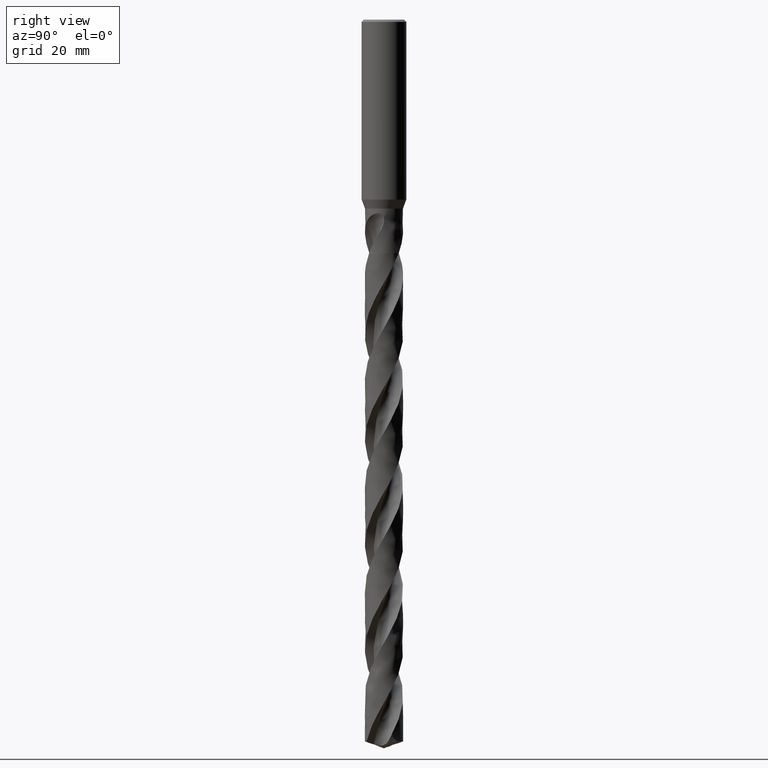
[diagram: clean part render]
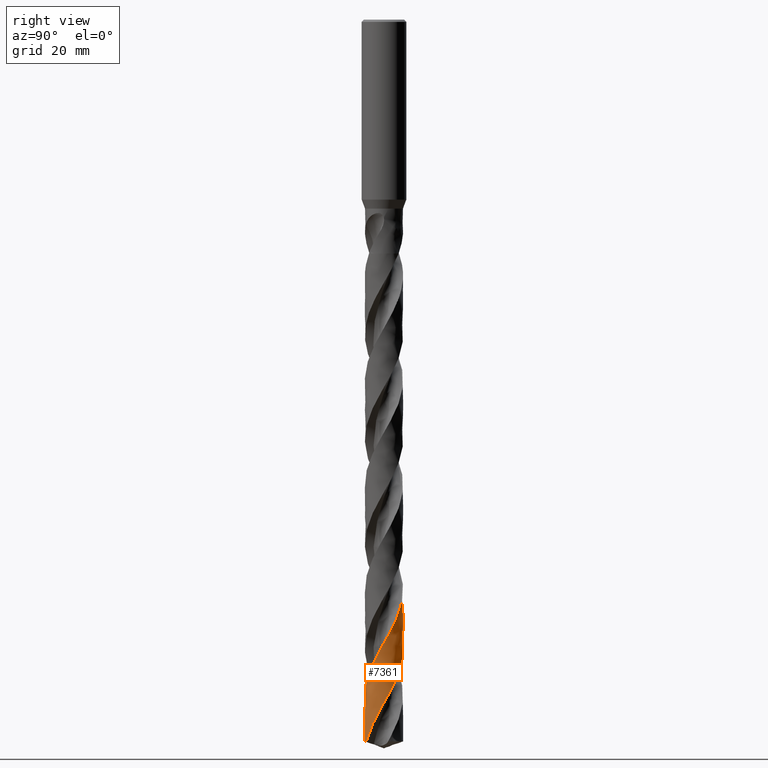
[diagram: same view with one face highlighted and labeled with its STEP entity id]
A machine part, right view. The second image highlights one B-rep face of the part: STEP entity #7361.
In plain terms, the highlighted face is a freeform B-spline surface patch.
Its self-contained STEP definition (entity closure, byte-faithful):
#4121 = VERTEX_POINT('', #4122);
#4122 = CARTESIAN_POINT('', (-4.25, 8.12227480106828E-15, -128.396813868673));
#4384 = EDGE_CURVE('', #4385, #4121, #4387, .T.);
#4385 = VERTEX_POINT('', #4386);
#4386 = CARTESIAN_POINT('', (1.7213034582218, -3.88582223019963, -160.453126504369));
#4387 = B_SPLINE_CURVE_WITH_KNOTS('', 3, (#4388, #4389, #4390, #4391, #4392, #4393, #4394, #4395, #4396, #4397, #4398, #4399, #4400, #4401, #4402, #4403, #4404, #4405, #4406, #4407, #4408, #4409, #4410, #4411, #4412, #4413, #4414, #4415, #4416, #4417, #4418, #4419, #4420, #4421, #4422, #4423, #4424, #4425, #4426, #4427, #4428, #4429, #4430, #4431, #4432, #4433, #4434, #4435, #4436, #4437, #4438, #4439, #4440, #4441, #4442, #4443, #4444, #4445, #4446, #4447, #4448, #4449, #4450, #4451, #4452, #4453, #4454, #4455, #4456, #4457, #4458, #4459, #4460, #4461, #4462, #4463, #4464, #4465, #4466, #4467, #4468, #4469, #4470, #4471, #4472, #4473, #4474, #4475, #4476, #4477, #4478, #4479, #4480, #4481, #4482, #4483, #4484, #4485, #4486, #4487, #4488, #4489, #4490, #4491, #4492, #4493, #4494, #4495, #4496, #4497, #4498, #4499, #4500, #4501, #4502, #4503, #4504, #4505, #4506, #4507, #4508, #4509, #4510, #4511, #4512, #4513, #4514, #4515, #4516, #4517, #4518, #4519, #4520, #4521, #4522, #4523, #4524, #4525, #4526, #4527, #4528, #4529, #4530, #4531, #4532, #4533, #4534, #4535, #4536, #4537, #4538, #4539, #4540, #4541, #4542, #4543, #4544, #4545, #4546, #4547, #4548, #4549, #4550, #4551, #4552, #4553, #4554, #4555, #4556, #4557, #4558, #4559, #4560, #4561, #4562, #4563, #4564, #4565, #4566, #4567, #4568), .UNSPECIFIED., .F., .U., (4, 3, 3, 3, 3, 3, 3, 3, 3, 3, 3, 3, 3, 3, 3, 3, 3, 3, 3, 3, 3, 3, 3, 3, 3, 3, 3, 3, 3, 3, 3, 3, 3, 3, 3, 3, 3, 3, 3, 3, 3, 3, 3, 3, 3, 3, 3, 3, 3, 3, 3, 3, 3, 3, 3, 3, 3, 3, 3, 3, 4), (0., 0.6655591401762, 1.33099209956627, 1.99630093449878, 2.66148715579485, 3.32655135398246, 3.99149413886519, 4.65631612548015, 5.32101721848678, 5.98559652809935, 6.65005334583186, 7.31438677449947, 7.97859512865723, 8.64267596814946, 9.30662709228754, 9.74945519051851, 9.88077345148786, 9.9683445954408, 10.634624893333, 11.3007608774789, 11.9667573612843, 12.6326184139383, 13.2983471387296, 13.9639461298357, 14.6294180893186, 15.2947650606578, 15.9599882497665, 16.6250886636775, 17.2900673795947, 17.9549248191992, 18.6196606220089, 19.28427446949, 19.9487659369517, 20.6131338946798, 21.2773764631943, 21.9414919091297, 22.6054781556391, 23.2693322964471, 23.4006501711016, 23.4590406646137, 24.1253242638683, 24.791463045132, 25.4574618222669, 26.1233246390809, 26.7890546055256, 27.4546544146072, 28.1201267357756, 28.785473579311, 29.4506961591252, 30.1157955742963, 30.7807728436041, 31.4456283514775, 32.1103617649899, 32.7749728152923, 33.4394610131399, 34.10382518939, 34.7680635084249, 35.4321742423179, 36.0961552437351, 36.7600035642459, 36.8877389686941), .UNSPECIFIED.);
#4388 = CARTESIAN_POINT('', (1.72130345822179, -3.88582223019963, -160.453126504369));
#4389 = CARTESIAN_POINT('', (1.82155421017638, -3.84141413435632, -160.260262609102));
#4390 = CARTESIAN_POINT('', (1.9201053764042, -3.79311465321824, -160.067364646324));
#4391 = CARTESIAN_POINT('', (2.01662660010283, -3.74108502386107, -159.874503698006));
#4392 = CARTESIAN_POINT('', (2.11312952471555, -3.68906525860033, -159.68167931345));
#4393 = CARTESIAN_POINT('', (2.20763740558999, -3.63329837100673, -159.488820739171));
#4394 = CARTESIAN_POINT('', (2.2998337433727, -3.5739704465544, -159.295999198892));
#4395 = CARTESIAN_POINT('', (2.39201288359965, -3.51465358865105, -159.103213625977));
#4396 = CARTESIAN_POINT('', (2.48191456004519, -3.45175558948141, -158.910394352668));
#4397 = CARTESIAN_POINT('', (2.56923619718098, -3.38548746314249, -158.717611501335));
#4398 = CARTESIAN_POINT('', (2.65654174130415, -3.31923154974217, -158.524864179075));
#4399 = CARTESIAN_POINT('', (2.74130092017879, -3.24958190022469, -158.332083465057));
#4400 = CARTESIAN_POINT('', (2.82322803190043, -3.17677249419778, -158.139339144537));
#4401 = CARTESIAN_POINT('', (2.90514011474667, -3.10397644447585, -157.946630181426));
#4402 = CARTESIAN_POINT('', (2.98425116348828, -3.02799521447711, -157.753887257152));
#4403 = CARTESIAN_POINT('', (3.06029604252879, -2.94908259160075, -157.561181333639));
#4404 = CARTESIAN_POINT('', (3.13632703890938, -2.8701843749161, -157.368510590283));
#4405 = CARTESIAN_POINT('', (3.2093198221316, -2.78832799095446, -157.175805726975));
#4406 = CARTESIAN_POINT('', (3.27902988087059, -2.7037867963946, -156.983137747059));
#4407 = CARTESIAN_POINT('', (3.34872727558113, -2.61926096019351, -156.790504768588));
#4408 = CARTESIAN_POINT('', (3.41516844134594, -2.53202052086039, -156.597838248083));
#4409 = CARTESIAN_POINT('', (3.47812958660994, -2.44235840505617, -156.405208013213));
#4410 = CARTESIAN_POINT('', (3.54107928279405, -2.35271259373184, -156.212612806913));
#4411 = CARTESIAN_POINT('', (3.60057382300166, -2.26061238575419, -156.019984190591));
#4412 = CARTESIAN_POINT('', (3.65641281352364, -2.16636685192054, -155.827392041953));
#4413 = CARTESIAN_POINT('', (3.71224157348957, -2.07213858530836, -155.634835179138));
#4414 = CARTESIAN_POINT('', (3.7644363473767, -1.97573174955759, -155.442244283462));
#4415 = CARTESIAN_POINT('', (3.81282229131544, -1.8774680223237, -155.249690388606));
#4416 = CARTESIAN_POINT('', (3.86119931700296, -1.77922240656049, -155.057171984305));
#4417 = CARTESIAN_POINT('', (3.90578598776708, -1.67908588445831, -154.864619594014));
#4418 = CARTESIAN_POINT('', (3.94643271513653, -1.57739304705583, -154.672103921923));
#4419 = CARTESIAN_POINT('', (3.98707189444335, -1.47571909392661, -154.479623999827));
#4420 = CARTESIAN_POINT('', (4.02378744311406, -1.37245211767566, -154.287110675783));
#4421 = CARTESIAN_POINT('', (4.05645545256836, -1.26793894227144, -154.094633525517));
#4422 = CARTESIAN_POINT('', (4.08911731159414, -1.16344544363438, -153.902192613055));
#4423 = CARTESIAN_POINT('', (4.11774539261538, -1.05766713094008, -153.709718256293));
#4424 = CARTESIAN_POINT('', (4.14224311252591, -0.950958462148456, -153.517280435672));
#4425 = CARTESIAN_POINT('', (4.16673612936618, -0.844270279278344, -153.324879559248));
#4426 = CARTESIAN_POINT('', (4.18710918470524, -0.736613920039199, -153.13244462792));
#4427 = CARTESIAN_POINT('', (4.20329376243792, -0.628348268598457, -152.940046650674));
#4428 = CARTESIAN_POINT('', (4.21947517882622, -0.520103764759759, -152.747686254653));
#4429 = CARTESIAN_POINT('', (4.23147546025478, -0.411211847130101, -152.55529203066));
#4430 = CARTESIAN_POINT('', (4.2392539358829, -0.302036532726988, -152.362934346003));
#4431 = CARTESIAN_POINT('', (4.24444185927713, -0.229221087292419, -152.234639680055));
#4432 = CARTESIAN_POINT('', (4.24775360871834, -0.156264642808209, -152.106335390021));
#4433 = CARTESIAN_POINT('', (4.24918404809079, -0.083276199785954, -151.978042108895));
#4434 = CARTESIAN_POINT('', (4.24960823709678, -0.0616318744894494, -151.939997435039));
#4435 = CARTESIAN_POINT('', (4.24986704940231, -0.039984067833722, -151.901952538311));
#4436 = CARTESIAN_POINT('', (4.24996044739381, -0.0183356371082067, -151.863907950173));
#4437 = CARTESIAN_POINT('', (4.25002273095513, -0.00389912363761182, -151.83853746415));
#4438 = CARTESIAN_POINT('', (4.25001145573993, 0.0105377829039946, -151.813166914573));
#4439 = CARTESIAN_POINT('', (4.2499266213453, 0.0249742503495454, -151.787796467744));
#4440 = CARTESIAN_POINT('', (4.24928116345615, 0.134813329707728, -151.594766799435));
#4441 = CARTESIAN_POINT('', (4.24437421685205, 0.244650262870293, -151.401703230016));
#4442 = CARTESIAN_POINT('', (4.23522168727937, 0.35411475484462, -151.208676679985));
#4443 = CARTESIAN_POINT('', (4.22607114010934, 0.463555537231585, -151.015691938761));
#4444 = CARTESIAN_POINT('', (4.21267360980863, 0.57266323349908, -150.822672772029));
#4445 = CARTESIAN_POINT('', (4.19507348906931, 0.68107152437017, -150.629690892236));
#4446 = CARTESIAN_POINT('', (4.1774770540982, 0.789457112679249, -150.43674942617));
#4447 = CARTESIAN_POINT('', (4.15567343374662, 0.897182497457559, -150.243773899551));
#4448 = CARTESIAN_POINT('', (4.12973553976558, 1.00388464058236, -150.050835158202));
#4449 = CARTESIAN_POINT('', (4.10380292028512, 1.11056508570356, -149.85793565117));
#4450 = CARTESIAN_POINT('', (4.07372797962674, 1.21626258649875, -149.665002548287));
#4451 = CARTESIAN_POINT('', (4.03961179786497, 1.32061974941698, -149.47210592668));
#4452 = CARTESIAN_POINT('', (4.00550239607839, 1.42495617323315, -149.279247639793));
#4453 = CARTESIAN_POINT('', (3.96734069121566, 1.52799167995798, -149.086355406022));
#4454 = CARTESIAN_POINT('', (3.92525445751574, 1.62937946585589, -148.893500213586));
#4455 = CARTESIAN_POINT('', (3.88317642535797, 1.73074749383948, -148.700682603748));
#4456 = CARTESIAN_POINT('', (3.83716041436932, 1.83050459667575, -148.50783064004));
#4457 = CARTESIAN_POINT('', (3.7873602289036, 1.92831597424264, -148.315015846787));
#4458 = CARTESIAN_POINT('', (3.73756954795708, 2.02610868420603, -148.122237852833));
#4459 = CARTESIAN_POINT('', (3.68397811557934, 2.1219917107232, -147.929425954982));
#4460 = CARTESIAN_POINT('', (3.62676595319534, 2.21564183042819, -147.736650685462));
#4461 = CARTESIAN_POINT('', (3.56956453633093, 2.30927436088023, -147.54391162276));
#4462 = CARTESIAN_POINT('', (3.50872228659088, 2.4007099164338, -147.351139005622));
#4463 = CARTESIAN_POINT('', (3.44444401696695, 2.48963961528182, -147.158402885867));
#4464 = CARTESIAN_POINT('', (3.38017770577665, 2.57855276950431, -146.965702623053));
#4465 = CARTESIAN_POINT('', (3.31245297516873, 2.66499384031618, -146.772968340255));
#4466 = CARTESIAN_POINT('', (3.24149666400404, 2.74867229353569, -146.580271123334));
#4467 = CARTESIAN_POINT('', (3.17055344870741, 2.83233530285789, -146.387609471077));
#4468 = CARTESIAN_POINT('', (3.09635462746732, 2.91326647085894, -146.194913558503));
#4469 = CARTESIAN_POINT('', (3.01914849105249, 2.99119414097038, -146.002254684047));
#4470 = CARTESIAN_POINT('', (2.94195648157506, 3.06910755212045, -145.809631061708));
#4471 = CARTESIAN_POINT('', (2.86173015238182, 3.14404686577761, -145.616973686683));
#4472 = CARTESIAN_POINT('', (2.77873928671423, 3.21575931569372, -145.424352798435));
#4473 = CARTESIAN_POINT('', (2.69576355660803, 3.28745868696341, -145.231767039658));
#4474 = CARTESIAN_POINT('', (2.60999316451736, 3.35595926831388, -145.039147727018));
#4475 = CARTESIAN_POINT('', (2.52171662193598, 3.4210298564397, -144.846564974152));
#4476 = CARTESIAN_POINT('', (2.4334562296976, 3.4860885397912, -144.654017454626));
#4477 = CARTESIAN_POINT('', (2.34265843892421, 3.54774225590119, -144.461435834837));
#4478 = CARTESIAN_POINT('', (2.24962707205959, 3.60578396977089, -144.268891292916));
#4479 = CARTESIAN_POINT('', (2.15661277313514, 3.66381503505469, -144.076382076057));
#4480 = CARTESIAN_POINT('', (2.06133266778219, 3.71825603669119, -143.883838716258));
#4481 = CARTESIAN_POINT('', (1.96410575368641, 3.7689240624263, -143.691332245557));
#4482 = CARTESIAN_POINT('', (1.86689674266573, 3.81958275830169, -143.498861222426));
#4483 = CARTESIAN_POINT('', (1.76770600739674, 3.86648838446756, -143.306356588326));
#4484 = CARTESIAN_POINT('', (1.66686722834232, 3.909482528811, -143.11388832022));
#4485 = CARTESIAN_POINT('', (1.5660471922987, 3.95246868178724, -142.921455826396));
#4486 = CARTESIAN_POINT('', (1.46354193915994, 3.99156092956992, -142.728989760225));
#4487 = CARTESIAN_POINT('', (1.35969583498046, 4.02662727805007, -142.536560314593));
#4488 = CARTESIAN_POINT('', (1.2558693301528, 4.06168700829734, -142.344167187054));
#4489 = CARTESIAN_POINT('', (1.15066499295869, 4.0927350662556, -142.15173992323));
#4490 = CARTESIAN_POINT('', (1.04443450275607, 4.11966704594593, -141.95934970847));
#4491 = CARTESIAN_POINT('', (0.93822434291851, 4.14659387140061, -141.766996313302));
#4492 = CARTESIAN_POINT('', (0.830950610638007, 4.16941576028675, -141.574608916313));
#4493 = CARTESIAN_POINT('', (0.72297259556332, 4.18805570952258, -141.382258243927));
#4494 = CARTESIAN_POINT('', (0.615015586923059, 4.20669203247512, -141.189944992138));
#4495 = CARTESIAN_POINT('', (0.506314735987329, 4.22115487621615, -140.997598255418));
#4496 = CARTESIAN_POINT('', (0.397235680532045, 4.23139501986197, -140.805287792414));
#4497 = CARTESIAN_POINT('', (0.288178327280989, 4.24163312614426, -140.61301559121));
#4498 = CARTESIAN_POINT('', (0.178702176475107, 4.24765406261815, -140.420709782489));
#4499 = CARTESIAN_POINT('', (0.0691744418434332, 4.24943700936917, -140.228440645804));
#4500 = CARTESIAN_POINT('', (0.0475086143017847, 4.24978969644841, -140.190407630961));
#4501 = CARTESIAN_POINT('', (0.0258398483397899, 4.24997668715569, -140.152374392453));
#4502 = CARTESIAN_POINT('', (0.00417100719078126, 4.24999795325822, -140.114341465136));
#4503 = CARTESIAN_POINT('', (-0.00546404311637758, 4.2500074092308, -140.097430123846));
#4504 = CARTESIAN_POINT('', (-0.0150991530846251, 4.24998410002246, -140.080518766486));
#4505 = CARTESIAN_POINT('', (-0.0247340751506823, 4.24992802592309, -140.063607442453));
#4506 = CARTESIAN_POINT('', (-0.134676467594798, 4.24928817428787, -139.870635313482));
#4507 = CARTESIAN_POINT('', (-0.244616864553485, 4.24437881410401, -139.677629084216));
#4508 = CARTESIAN_POINT('', (-0.354184053559415, 4.23521589251415, -139.484660035953));
#4509 = CARTESIAN_POINT('', (-0.463727427931143, 4.2260549625025, -139.291732929875));
#4510 = CARTESIAN_POINT('', (-0.572937131088277, 4.2126390552778, -139.098771310572));
#4511 = CARTESIAN_POINT('', (-0.681445561563599, 4.19501274689665, -138.905847036476));
#4512 = CARTESIAN_POINT('', (-0.789931186538478, 4.17739014308281, -138.712963309778));
#4513 = CARTESIAN_POINT('', (-0.897755137164982, 4.15555248483413, -138.520045456393));
#4514 = CARTESIAN_POINT('', (-1.00455310633781, 4.12957298719216, -138.327164460701));
#4515 = CARTESIAN_POINT('', (-1.11132927323915, 4.10359879313474, -138.1343228407));
#4516 = CARTESIAN_POINT('', (-1.21711995429611, 4.07347467751293, -137.941447460501));
#4517 = CARTESIAN_POINT('', (-1.32156688924127, 4.03930203838005, -137.748608752004));
#4518 = CARTESIAN_POINT('', (-1.42599298533864, 4.00513621723973, -137.55580851794));
#4519 = CARTESIAN_POINT('', (-1.52911469078083, 3.96691083203204, -137.36297413738));
#4520 = CARTESIAN_POINT('', (-1.63058436818511, 3.92475408379053, -137.170176947875));
#4521 = CARTESIAN_POINT('', (-1.73203420717697, 3.88260557764636, -136.977417452292));
#4522 = CARTESIAN_POINT('', (-1.83186901940376, 3.8365121581498, -136.784623530913));
#4523 = CARTESIAN_POINT('', (-1.92975285412883, 3.78662830523167, -136.591866830234));
#4524 = CARTESIAN_POINT('', (-2.02761794034219, 3.73675400698623, -136.399147049863));
#4525 = CARTESIAN_POINT('', (-2.12356844195113, 3.68307251457534, -136.206393290678));
#4526 = CARTESIAN_POINT('', (-2.21728011442904, 3.6257645944211, -136.013676246283));
#4527 = CARTESIAN_POINT('', (-2.31097411717302, 3.56846747991864, -135.820995539506));
#4528 = CARTESIAN_POINT('', (-2.40246533976002, 3.50752376486017, -135.628281092816));
#4529 = CARTESIAN_POINT('', (-2.49144430060811, 3.44313887273915, -135.435603355551));
#4530 = CARTESIAN_POINT('', (-2.58040664327142, 3.3787660054836, -135.242961603806));
#4531 = CARTESIAN_POINT('', (-2.66689040744314, 3.31092960810744, -135.050285637335));
#4532 = CARTESIAN_POINT('', (-2.75060444180938, 3.23985728153241, -134.857646872255));
#4533 = CARTESIAN_POINT('', (-2.83430297668794, 3.16879811385789, -134.665043773861));
#4534 = CARTESIAN_POINT('', (-2.91526274789117, 3.0944787970556, -134.472406354505));
#4535 = CARTESIAN_POINT('', (-2.99321126692706, 3.01714870557302, -134.279806019891));
#4536 = CARTESIAN_POINT('', (-3.07114547067576, 2.93983281580308, -134.08724105643));
#4537 = CARTESIAN_POINT('', (-3.14609808043157, 2.85947887115798, -133.894642252519));
#4538 = CARTESIAN_POINT('', (-3.21781570450668, 2.77635770242781, -133.702080039758));
#4539 = CARTESIAN_POINT('', (-3.28952019664302, 2.69325175369569, -133.509553086325));
#4540 = CARTESIAN_POINT('', (-3.35801782957931, 2.60734837526573, -133.316992389385));
#4541 = CARTESIAN_POINT('', (-3.42307709540408, 2.51893691840825, -133.124468450789));
#4542 = CARTESIAN_POINT('', (-3.48812441371636, 2.43054169746999, -132.931979867376));
#4543 = CARTESIAN_POINT('', (-3.54975836080501, 2.33960714129897, -132.739457027491));
#4544 = CARTESIAN_POINT('', (-3.6077715693387, 2.24643813702301, -132.546971371592));
#4545 = CARTESIAN_POINT('', (-3.66577409888097, 2.15328628316888, -132.354521148187));
#4546 = CARTESIAN_POINT('', (-3.72017797484701, 2.05786745230081, -132.162036727533));
#4547 = CARTESIAN_POINT('', (-3.77079991317431, 1.96050198031133, -131.969589243729));
#4548 = CARTESIAN_POINT('', (-3.82141249410471, 1.8631545061978, -131.777177333583));
#4549 = CARTESIAN_POINT('', (-3.86826318064425, 1.76382516077444, -131.584731707652));
#4550 = CARTESIAN_POINT('', (-3.91119341203211, 1.66284878857841, -131.392322573976));
#4551 = CARTESIAN_POINT('', (-3.95411563082335, 1.56189126284352, -131.19994935198));
#4552 = CARTESIAN_POINT('', (-3.99313496647505, 1.45924948091366, -131.007542365459));
#4553 = CARTESIAN_POINT('', (-4.02811948701124, 1.35526875502993, -130.815172182278));
#4554 = CARTESIAN_POINT('', (-4.0630973800764, 1.25130772726517, -130.622838441724));
#4555 = CARTESIAN_POINT('', (-4.09405466934083, 1.14597068804832, -130.430470443837));
#4556 = CARTESIAN_POINT('', (-4.1208870276377, 1.0396105547018, -130.238139576227));
#4557 = CARTESIAN_POINT('', (-4.14771423204607, 0.933270850728772, -130.045845651023));
#4558 = CARTESIAN_POINT('', (-4.17042769885197, 0.825870260741553, -129.853517670763));
#4559 = CARTESIAN_POINT('', (-4.18895058369406, 0.717769466729679, -129.66122646899));
#4560 = CARTESIAN_POINT('', (-4.20746985013399, 0.60968978995462, -129.468972830853));
#4561 = CARTESIAN_POINT('', (-4.22180701218255, 0.500870056955275, -129.276685581592));
#4562 = CARTESIAN_POINT('', (-4.23191317743147, 0.391676982579049, -129.084434758264));
#4563 = CARTESIAN_POINT('', (-4.24201732320218, 0.282505727857388, -128.892222351718));
#4564 = CARTESIAN_POINT('', (-4.24789596298074, 0.172920536770311, -128.699976143337));
#4565 = CARTESIAN_POINT('', (-4.24952873102842, 0.0632895265003367, -128.507766774406));
#4566 = CARTESIAN_POINT('', (-4.2498429026253, 0.0421947055838319, -128.4707825105));
#4567 = CARTESIAN_POINT('', (-4.25, 0.0210973165448431, -128.433798043459));
#4568 = CARTESIAN_POINT('', (-4.25, 8.20250576183221E-15, -128.396813868673));
#5113 = VERTEX_POINT('', #5114);
#5114 = CARTESIAN_POINT('', (-4.1509815515428, -0.912059295633432, -160.453126504369));
#5163 = EDGE_CURVE('', #5164, #5113, #5166, .T.);
#5164 = VERTEX_POINT('', #5165);
#5165 = CARTESIAN_POINT('', (-3.95821202947027, -1.54759734096333, -159.278966321454));
#5166 = B_SPLINE_CURVE_WITH_KNOTS('', 3, (#5167, #5168, #5169, #5170, #5171, #5172, #5173), .UNSPECIFIED., .F., .U., (4, 3, 4), (0., 0.664330200615782, 1.34922431265767), .UNSPECIFIED.);
#5167 = CARTESIAN_POINT('', (-3.95821202947027, -1.54759734096334, -159.278966321454));
#5168 = CARTESIAN_POINT('', (-3.99794210772328, -1.44598171426876, -159.471665477622));
#5169 = CARTESIAN_POINT('', (-4.03376306687196, -1.34281782559421, -159.664399917921));
#5170 = CARTESIAN_POINT('', (-4.06555656405872, -1.23844653677049, -159.857099131984));
#5171 = CARTESIAN_POINT('', (-4.09833420837512, -1.13084450224711, -160.055763225509));
#5172 = CARTESIAN_POINT('', (-4.12684230478974, -1.0219222929405, -160.254462435032));
#5173 = CARTESIAN_POINT('', (-4.1509815515428, -0.912059295633433, -160.453126504369));
#6053 = EDGE_CURVE('', #4385, #5113, #6054, .T.);
#6054 = CIRCLE('', #6055, 4.25);
#6055 = AXIS2_PLACEMENT_3D('', #6056, #6057, #6058);
#6056 = CARTESIAN_POINT('', (6.01602865334019E-31, 9.82492038933802E-15, -160.453126504369));
#6057 = DIRECTION('', (3.74939945665464E-33, 6.12323399573677E-17, -1.));
#6058 = DIRECTION('', (-1., 6.12323399573677E-17, 0.));
#7361 = ADVANCED_FACE('', (#7362), #7628, .T.);
#7362 = FACE_OUTER_BOUND('', #7363, .T.);
#7363 = EDGE_LOOP('', (#7364, #7365, #7366, #7367, #7375));
#7364 = ORIENTED_EDGE('', *, *, #5163, .T.);
#7365 = ORIENTED_EDGE('', *, *, #6053, .F.);
#7366 = ORIENTED_EDGE('', *, *, #4384, .T.);
#7367 = ORIENTED_EDGE('', *, *, #7368, .F.);
#7368 = EDGE_CURVE('', #7369, #4121, #7371, .T.);
#7369 = VERTEX_POINT('', #7370);
#7370 = CARTESIAN_POINT('', (-4.25, 7.3080478474322E-15, -115.099478601019));
#7371 = LINE('', #7372, #7373);
#7372 = CARTESIAN_POINT('', (-4.25, 7.3080478474322E-15, -115.099478601019));
#7373 = VECTOR('', #7374, 13.297335267654);
#7374 = DIRECTION('', (0., 8.14226953636082E-16, -13.297335267654));
#7375 = ORIENTED_EDGE('', *, *, #7376, .F.);
#7376 = EDGE_CURVE('', #5164, #7369, #7377, .T.);
#7377 = B_SPLINE_CURVE_WITH_KNOTS('', 3, (#7378, #7379, #7380, #7381, #7382, #7383, #7384, #7385, #7386, #7387, #7388, #7389, #7390, #7391, #7392, #7393, #7394, #7395, #7396, #7397, #7398, #7399, #7400, #7401, #7402, #7403, #7404, #7405, #7406, #7407, #7408, #7409, #7410, #7411, #7412, #7413, #7414, #7415, #7416, #7417, #7418, #7419, #7420, #7421, #7422, #7423, #7424, #7425, #7426, #7427, #7428, #7429, #7430, #7431, #7432, #7433, #7434, #7435, #7436, #7437, #7438, #7439, #7440, #7441, #7442, #7443, #7444, #7445, #7446, #7447, #7448, #7449, #7450, #7451, #7452, #7453, #7454, #7455, #7456, #7457, #7458, #7459, #7460, #7461, #7462, #7463, #7464, #7465, #7466, #7467, #7468, #7469, #7470, #7471, #7472, #7473, #7474, #7475, #7476, #7477, #7478, #7479, #7480, #7481, #7482, #7483, #7484, #7485, #7486, #7487, #7488, #7489, #7490, #7491, #7492, #7493, #7494, #7495, #7496, #7497, #7498, #7499, #7500, #7501, #7502, #7503, #7504, #7505, #7506, #7507, #7508, #7509, #7510, #7511, #7512, #7513, #7514, #7515, #7516, #7517, #7518, #7519, #7520, #7521, #7522, #7523, #7524, #7525, #7526, #7527, #7528, #7529, #7530, #7531, #7532, #7533, #7534, #7535, #7536, #7537, #7538, #7539, #7540, #7541, #7542, #7543, #7544, #7545, #7546, #7547, #7548, #7549, #7550, #7551, #7552, #7553, #7554, #7555, #7556, #7557, #7558, #7559, #7560, #7561, #7562, #7563, #7564, #7565, #7566, #7567, #7568, #7569, #7570, #7571, #7572, #7573, #7574, #7575, #7576, #7577, #7578, #7579, #7580, #7581, #7582, #7583, #7584, #7585, #7586, #7587, #7588, #7589, #7590, #7591, #7592, #7593, #7594, #7595, #7596, #7597, #7598, #7599, #7600, #7601, #7602, #7603, #7604, #7605, #7606, #7607, #7608, #7609, #7610, #7611, #7612, #7613, #7614, #7615, #7616, #7617, #7618, #7619, #7620, #7621, #7622, #7623, #7624, #7625, #7626, #7627), .UNSPECIFIED., .F., .U., (4, 3, 3, 3, 3, 3, 3, 3, 3, 3, 3, 3, 3, 3, 3, 3, 3, 3, 3, 3, 3, 3, 3, 3, 3, 3, 3, 3, 3, 3, 3, 3, 3, 3, 3, 3, 3, 3, 3, 3, 3, 3, 3, 3, 3, 3, 3, 3, 3, 3, 3, 3, 3, 3, 3, 3, 3, 3, 3, 3, 3, 3, 3, 3, 3, 3, 3, 3, 3, 3, 3, 3, 3, 3, 3, 3, 3, 3, 3, 3, 3, 3, 3, 4), (0., 0.665627744913342, 1.33113007925996, 1.99650860787055, 2.66176478494444, 3.32690014619072, 3.9919155420225, 4.65681100836746, 5.32158665571827, 5.98624254527837, 6.65077801519054, 7.3151916325292, 7.97948219085311, 8.64364820983202, 9.3076873871723, 9.9715966748143, 10.2669292714386, 10.3253052150726, 10.3836997684535, 11.0499703243, 11.7160981505175, 12.3820879738054, 13.047943738995, 13.713668438653, 14.3792646726786, 15.0447350770959, 15.7100816056887, 16.3753053887471, 17.0404074742312, 17.7053888827716, 18.3702499696969, 19.0349903381204, 19.6996097104208, 20.3641076241065, 21.0284829021902, 21.6927336631382, 22.3568582137175, 23.0208544577895, 23.6847194611011, 23.8160377879726, 23.8744181291735, 24.5407006260352, 25.2068392615407, 25.8728387914357, 26.5387031902233, 27.2044355112092, 27.8700384574775, 28.5355146530727, 29.2008660587434, 29.8660938556352, 30.5311991610137, 31.1961829610431, 31.861045605019, 32.5257867489052, 33.1904061425799, 33.8549032781384, 34.5192769639207, 35.1835253727768, 35.847646799404, 36.5116390919431, 37.1754992932562, 37.3068174124501, 37.3651959318641, 38.0314855194312, 38.6976302882918, 39.3636349951691, 40.0295036233097, 40.6952392708656, 41.360844730402, 42.0263225941323, 42.6916748148054, 43.3569026192806, 44.0220071703109, 44.6869894091379, 45.3518496666934, 46.0165876472727, 46.6812031049793, 47.3456954764796, 48.0100635430963, 48.6743055252682, 49.3384196812032, 50.0024037909806, 50.6662548592346, 50.8184127109318), .UNSPECIFIED.);
#7378 = CARTESIAN_POINT('', (-3.95821202947027, -1.54759734096333, -159.278966321454));
#7379 = CARTESIAN_POINT('', (-3.91840435195047, -1.64941143940712, -159.085890792676));
#7380 = CARTESIAN_POINT('', (-3.87465648857343, -1.74971134263954, -158.892783121255));
#7381 = CARTESIAN_POINT('', (-3.82711380425294, -1.84816122924829, -158.699712578089));
#7382 = CARTESIAN_POINT('', (-3.77958007742413, -1.94659256696665, -158.50667841124));
#7383 = CARTESIAN_POINT('', (-3.72823506208753, -2.04321158320022, -158.313612591728));
#7384 = CARTESIAN_POINT('', (-3.6732499521267, -2.13769380155371, -158.120583782739));
#7385 = CARTESIAN_POINT('', (-3.61827507123894, -2.23215844304837, -157.927590883576));
#7386 = CARTESIAN_POINT('', (-3.55964147079993, -2.32452156944125, -157.734565530787));
#7387 = CARTESIAN_POINT('', (-3.49754310492853, -2.41447555986116, -157.541578127799));
#7388 = CARTESIAN_POINT('', (-3.43545615786637, -2.50441300930704, -157.348626211837));
#7389 = CARTESIAN_POINT('', (-3.36988440802599, -2.59197310148391, -157.155641483715));
#7390 = CARTESIAN_POINT('', (-3.30104465206832, -2.67686462210009, -156.962694616913));
#7391 = CARTESIAN_POINT('', (-3.23221739795938, -2.76174072573906, -156.769782790801));
#7392 = CARTESIAN_POINT('', (-3.160098621954, -2.84397956610729, -156.576838985758));
#7393 = CARTESIAN_POINT('', (-3.08492884005477, -2.92330532989598, -156.383932159493));
#7394 = CARTESIAN_POINT('', (-3.00977261595832, -3.00261678629901, -156.191060126367));
#7395 = CARTESIAN_POINT('', (-2.93153820019491, -3.07904606055369, -155.998156380939));
#7396 = CARTESIAN_POINT('', (-2.85048661785188, -3.15233660027722, -155.805289784334));
#7397 = CARTESIAN_POINT('', (-2.76944965242559, -3.22561392271754, -155.612457969468));
#7398 = CARTESIAN_POINT('', (-2.68556754031995, -3.29577997063201, -155.419593524504));
#7399 = CARTESIAN_POINT('', (-2.59911780907868, -3.36260116792491, -155.226767084059));
#7400 = CARTESIAN_POINT('', (-2.51268365670713, -3.42941032355253, -155.033975392339));
#7401 = CARTESIAN_POINT('', (-2.42365311127211, -3.49289877410799, -154.841151016429));
#7402 = CARTESIAN_POINT('', (-2.33232121175402, -3.55285487533648, -154.648364314544));
#7403 = CARTESIAN_POINT('', (-2.24100576546576, -3.61280017561242, -154.455612342735));
#7404 = CARTESIAN_POINT('', (-2.14735665430167, -3.66923606267894, -154.262828545411));
#7405 = CARTESIAN_POINT('', (-2.05168678603727, -3.72197277421531, -154.070081592246));
#7406 = CARTESIAN_POINT('', (-1.95603425085008, -3.77469993112899, -153.877369560188));
#7407 = CARTESIAN_POINT('', (-1.85832573928254, -3.82374909252134, -153.684625724861));
#7408 = CARTESIAN_POINT('', (-1.75888701948705, -3.86895547308055, -153.491919181055));
#7409 = CARTESIAN_POINT('', (-1.65946653327646, -3.91415356436994, -153.299247972892));
#7410 = CARTESIAN_POINT('', (-1.55828138730345, -3.95552631699204, -153.106544018917));
#7411 = CARTESIAN_POINT('', (-1.45566626885473, -3.99293572621931, -152.913878068224));
#7412 = CARTESIAN_POINT('', (-1.35307015621058, -4.03033820668275, -152.721247802053));
#7413 = CARTESIAN_POINT('', (-1.24900919142986, -4.06379168413714, -152.528585011719));
#7414 = CARTESIAN_POINT('', (-1.1438288601415, -4.09318403430721, -152.335959688926));
#7415 = CARTESIAN_POINT('', (-1.03866824776892, -4.12257087408127, -152.143370478991));
#7416 = CARTESIAN_POINT('', (-0.932350098962822, -4.14790882023794, -151.950749574858));
#7417 = CARTESIAN_POINT('', (-0.825230023952832, -4.16911206464482, -151.758165420561));
#7418 = CARTESIAN_POINT('', (-0.718130406607728, -4.19031125968122, -151.565618045758));
#7419 = CARTESIAN_POINT('', (-0.610189074242994, -4.20738531002945, -151.373038752576));
#7420 = CARTESIAN_POINT('', (-0.501765471193169, -4.22027622459937, -151.180496881616));
#7421 = CARTESIAN_POINT('', (-0.39336307639365, -4.23316461763582, -150.987992672901));
#7422 = CARTESIAN_POINT('', (-0.284440755699652, -4.24187607424136, -150.795455674113));
#7423 = CARTESIAN_POINT('', (-0.175358764516534, -4.24638072995204, -150.602956615614));
#7424 = CARTESIAN_POINT('', (-0.126834864790001, -4.24838457549644, -150.517325569547));
#7425 = CARTESIAN_POINT('', (-0.0782738623053632, -4.24955667768552, -150.431692038698));
#7426 = CARTESIAN_POINT('', (-0.0297080396648951, -4.24989616724682, -150.346061986087));
#7427 = CARTESIAN_POINT('', (-0.0201084365143908, -4.24996327133123, -150.329136204166));
#7428 = CARTESIAN_POINT('', (-0.0105085647463031, -4.24999785034826, -150.312210414392));
#7429 = CARTESIAN_POINT('', (-0.000908674449090349, -4.24999990286008, -150.295284662435));
#7430 = CARTESIAN_POINT('', (0.00869427621027496, -4.25000195602622, -150.278353514695));
#7431 = CARTESIAN_POINT('', (0.018297273033948, -4.24997146196686, -150.261422357907));
#7432 = CARTESIAN_POINT('', (0.0279000725809336, -4.24990842088978, -150.244491241698));
#7433 = CARTESIAN_POINT('', (0.13746615745389, -4.24918913439755, -150.051310481603));
#7434 = CARTESIAN_POINT('', (0.247028954011384, -4.24422950270687, -149.858097208205));
#7435 = CARTESIAN_POINT('', (0.356221539899257, -4.23504500737736, -149.664921964886));
#7436 = CARTESIAN_POINT('', (0.465390734362824, -4.22586247956629, -149.471788103901));
#7437 = CARTESIAN_POINT('', (0.574227916575604, -4.21245373814745, -149.278621083949));
#7438 = CARTESIAN_POINT('', (0.682370150698791, -4.1948624503594, -149.085492308546));
#7439 = CARTESIAN_POINT('', (0.790489980795999, -4.17727480699087, -148.892403543988));
#7440 = CARTESIAN_POINT('', (0.897953559748374, -4.15550003455526, -148.699282289806));
#7441 = CARTESIAN_POINT('', (1.00440002642249, -4.12961022215444, -148.50619847069));
#7442 = CARTESIAN_POINT('', (1.11082506632641, -4.1037256211531, -148.313153517707));
#7443 = CARTESIAN_POINT('', (1.21627347968158, -4.07371785382883, -148.120076612734));
#7444 = CARTESIAN_POINT('', (1.32038988867064, -4.03968693612467, -147.927036913244));
#7445 = CARTESIAN_POINT('', (1.42448580362299, -4.0056627169888, -147.734035211249));
#7446 = CARTESIAN_POINT('', (1.52728865398347, -3.96760445055303, -147.541000863442));
#7447 = CARTESIAN_POINT('', (1.62845458917999, -3.92563824759472, -147.348004606132));
#7448 = CARTESIAN_POINT('', (1.72960100227399, -3.88368014290106, -147.155045591524));
#7449 = CARTESIAN_POINT('', (1.8291462725128, -3.83780105398512, -146.962053502338));
#7450 = CARTESIAN_POINT('', (1.92675817748167, -3.78815297018315, -146.769099506439));
#7451 = CARTESIAN_POINT('', (2.02435162911932, -3.73851427225, -146.5761819881));
#7452 = CARTESIAN_POINT('', (2.12004745968494, -3.68509011545043, -146.383232147844));
#7453 = CARTESIAN_POINT('', (2.2135238794023, -3.62805899005456, -146.190319575132));
#7454 = CARTESIAN_POINT('', (2.30698289869359, -3.57103848087489, -145.997442912664));
#7455 = CARTESIAN_POINT('', (2.39825860343772, -3.5103908121749, -145.804534262461));
#7456 = CARTESIAN_POINT('', (2.48704360297589, -3.44631892269079, -145.611662930963));
#7457 = CARTESIAN_POINT('', (2.5758122231362, -3.38225885342062, -145.418827181066));
#7458 = CARTESIAN_POINT('', (2.66212333490594, -3.31475262569781, -145.225958622422));
#7459 = CARTESIAN_POINT('', (2.74568853065583, -3.2440244284877, -145.033128212431));
#7460 = CARTESIAN_POINT('', (2.82923843879593, -3.17330917045725, -144.84033307928));
#7461 = CARTESIAN_POINT('', (2.91007242874782, -3.09934857793332, -144.64750498585));
#7462 = CARTESIAN_POINT('', (2.98792031414965, -3.02238849195331, -144.454714814577));
#7463 = CARTESIAN_POINT('', (3.06575407473501, -2.94544236970635, -144.26195962339));
#7464 = CARTESIAN_POINT('', (3.14063103228838, -2.86546984480343, -144.069172266818));
#7465 = CARTESIAN_POINT('', (3.21229895894338, -2.7827388304279, -143.876422036483));
#7466 = CARTESIAN_POINT('', (3.28395391801676, -2.70002278538706, -143.683706682339));
#7467 = CARTESIAN_POINT('', (3.35242805929652, -2.61451803652031, -143.490959268718));
#7468 = CARTESIAN_POINT('', (3.41749084209959, -2.52651070533363, -143.298249308049));
#7469 = CARTESIAN_POINT('', (3.48254181148507, -2.43851935359493, -143.105574337633));
#7470 = CARTESIAN_POINT('', (3.54420599361467, -2.34799488863467, -142.912866431933));
#7471 = CARTESIAN_POINT('', (3.60227729441958, -2.25523796839914, -142.720196692237));
#7472 = CARTESIAN_POINT('', (3.66033802507921, -2.1624979317896, -142.52756202231));
#7473 = CARTESIAN_POINT('', (3.71482736394322, -2.06749396930749, -142.334894536693));
#7474 = CARTESIAN_POINT('', (3.76556267003241, -1.97054250856416, -142.142264783361));
#7475 = CARTESIAN_POINT('', (3.81628870428837, -1.8736087656163, -141.949670232949));
#7476 = CARTESIAN_POINT('', (3.86328065043537, -1.77469259879299, -141.757043654394));
#7477 = CARTESIAN_POINT('', (3.90637973940449, -1.67412584101976, -141.564454096831));
#7478 = CARTESIAN_POINT('', (3.9494708742738, -1.57357764322186, -141.371900082398));
#7479 = CARTESIAN_POINT('', (3.98868683803382, -1.47134162678536, -141.179313912483));
#7480 = CARTESIAN_POINT('', (4.02389533618994, -1.36775959999879, -140.986765321621));
#7481 = CARTESIAN_POINT('', (4.05909723557352, -1.26419698654339, -140.794252818192));
#7482 = CARTESIAN_POINT('', (4.09030567888458, -1.15925226639161, -140.601707318494));
#7483 = CARTESIAN_POINT('', (4.11741592907139, -1.05327397529289, -140.409199945252));
#7484 = CARTESIAN_POINT('', (4.14452102819949, -0.947315820504097, -140.216729149199));
#7485 = CARTESIAN_POINT('', (4.16753894148801, -0.840287372478756, -140.024225710047));
#7486 = CARTESIAN_POINT('', (4.18639185641906, -0.73254571496149, -139.831759798437));
#7487 = CARTESIAN_POINT('', (4.20524112903383, -0.624824872750253, -139.639331070558));
#7488 = CARTESIAN_POINT('', (4.21993395039136, -0.516351111478709, -139.44687042138));
#7489 = CARTESIAN_POINT('', (4.23041996612071, -0.407488540020209, -139.254446737163));
#7490 = CARTESIAN_POINT('', (4.24090390925899, -0.298647485560922, -139.062061086039));
#7491 = CARTESIAN_POINT('', (4.24718668068478, -0.189377061050294, -138.869643159128));
#7492 = CARTESIAN_POINT('', (4.24924619899534, -0.0800421159430222, -138.677262923343));
#7493 = CARTESIAN_POINT('', (4.24965358980123, -0.0584147037606443, -138.639208423466));
#7494 = CARTESIAN_POINT('', (4.24989586589877, -0.0367838647647011, -138.601153745168));
#7495 = CARTESIAN_POINT('', (4.24997298850302, -0.015152458370149, -138.563099413019));
#7496 = CARTESIAN_POINT('', (4.25000727498883, -0.00553575888840388, -138.546181554347));
#7497 = CARTESIAN_POINT('', (4.25000892090537, 0.00408109572404351, -138.529263686218));
#7498 = CARTESIAN_POINT('', (4.24997792566373, 0.0136978600884234, -138.512345858077));
#7499 = CARTESIAN_POINT('', (4.249624183521, 0.123451959510035, -138.319266260685));
#7500 = CARTESIAN_POINT('', (4.24501567360898, 0.233216874425278, -138.126153829248));
#7501 = CARTESIAN_POINT('', (4.23616677287609, 0.342623805916502, -137.93307964998));
#7502 = CARTESIAN_POINT('', (4.22731978276649, 0.452007114650699, -137.740047158604));
#7503 = CARTESIAN_POINT('', (4.21423115228238, 0.561071037722197, -137.546981322906));
#7504 = CARTESIAN_POINT('', (4.19694368995414, 0.669450269515409, -137.3539538483));
#7505 = CARTESIAN_POINT('', (4.17965983765971, 0.777806869144063, -137.160966682428));
#7506 = CARTESIAN_POINT('', (4.15817262260021, 0.885518052695921, -136.967946836058));
#7507 = CARTESIAN_POINT('', (4.13255347445114, 0.992220631110775, -136.774964584459));
#7508 = CARTESIAN_POINT('', (4.10693952441964, 1.09890155960408, -136.582021488902));
#7509 = CARTESIAN_POINT('', (4.07718559960475, 1.20461466952642, -136.389046132481));
#7510 = CARTESIAN_POINT('', (4.0433911573582, 1.30900265415986, -136.19610827357));
#7511 = CARTESIAN_POINT('', (4.00960341842188, 1.41336993287246, -136.003208684926));
#7512 = CARTESIAN_POINT('', (3.97176438137431, 1.51645108671154, -135.810276131323));
#7513 = CARTESIAN_POINT('', (3.92999986173791, 1.61790020914149, -135.617381880696));
#7514 = CARTESIAN_POINT('', (3.88824345838603, 1.71932961651306, -135.424525116065));
#7515 = CARTESIAN_POINT('', (3.8425484615227, 1.81916320217239, -135.231635107128));
#7516 = CARTESIAN_POINT('', (3.79306694358055, 1.91706629032919, -135.038783303206));
#7517 = CARTESIAN_POINT('', (3.74359484839673, 2.01495073481504, -134.845968224025));
#7518 = CARTESIAN_POINT('', (3.69031962807837, 2.11094097354252, -134.653120624965));
#7519 = CARTESIAN_POINT('', (3.63341999131569, 2.20471294428721, -134.460310468923));
#7520 = CARTESIAN_POINT('', (3.5765310243582, 2.29846733093614, -134.267536468593));
#7521 = CARTESIAN_POINT('', (3.51599744532841, 2.39003980115501, -134.074730161267));
#7522 = CARTESIAN_POINT('', (3.45202238602406, 2.4791211036149, -133.881961470552));
#7523 = CARTESIAN_POINT('', (3.38805921198651, 2.56818585657789, -133.689228592345));
#7524 = CARTESIAN_POINT('', (3.32063267326797, 2.65479273871243, -133.49646261065));
#7525 = CARTESIAN_POINT('', (3.24996749438126, 2.73865136252595, -133.303734968885));
#7526 = CARTESIAN_POINT('', (3.17931532740527, 2.82249454505787, -133.111042814964));
#7527 = CARTESIAN_POINT('', (3.10540091224168, 2.90361989183474, -132.918317543077));
#7528 = CARTESIAN_POINT('', (3.02847105821878, 2.98175502842391, -132.725630303935));
#7529 = CARTESIAN_POINT('', (2.95155525819407, 3.05987589082678, -132.532978266031));
#7530 = CARTESIAN_POINT('', (2.871596814166, 3.13503629204788, -132.340293852999));
#7531 = CARTESIAN_POINT('', (2.78886461427892, 3.20698209586878, -132.147646762289));
#7532 = CARTESIAN_POINT('', (2.70614748770166, 3.27891479159644, -131.955034770721));
#7533 = CARTESIAN_POINT('', (2.62062632478281, 3.3476612978154, -131.762390399736));
#7534 = CARTESIAN_POINT('', (2.53258812783004, 3.41298950698276, -131.569783764326));
#7535 = CARTESIAN_POINT('', (2.44456601938656, 3.47830577776954, -131.377212326749));
#7536 = CARTESIAN_POINT('', (2.35399627210764, 3.54022847254453, -131.184607702102));
#7537 = CARTESIAN_POINT('', (2.26118085392942, 3.59854986707466, -130.992041405821));
#7538 = CARTESIAN_POINT('', (2.1683824352959, 3.65686057978951, -130.799510378888));
#7539 = CARTESIAN_POINT('', (2.07330645562298, 3.71159182912774, -130.606946386267));
#7540 = CARTESIAN_POINT('', (1.97627101548951, 3.76255935147023, -130.414420239798));
#7541 = CARTESIAN_POINT('', (1.87925342522657, 3.81351749823126, -130.221929508913));
#7542 = CARTESIAN_POINT('', (1.78024105980593, 3.86073216305754, -130.029406522954));
#7543 = CARTESIAN_POINT('', (1.67956725865469, 3.90404326610954, -129.83692078028));
#7544 = CARTESIAN_POINT('', (1.57891216060622, 3.94734632285752, -129.644470797463));
#7545 = CARTESIAN_POINT('', (1.47655831623527, 3.98676362592835, -129.451988337934));
#7546 = CARTESIAN_POINT('', (1.37284892839571, 4.02216183411395, -129.259543724851));
#7547 = CARTESIAN_POINT('', (1.26915909640793, 4.0575533674736, -129.067135399885));
#7548 = CARTESIAN_POINT('', (1.16407741583258, 4.08893994294035, -128.874693865289));
#7549 = CARTESIAN_POINT('', (1.057954310195, 4.11621582008767, -128.682290595091));
#7550 = CARTESIAN_POINT('', (0.95185149176971, 4.14348648299341, -128.489924106005));
#7551 = CARTESIAN_POINT('', (0.844669976517566, 4.16665765301552, -128.297524826378));
#7552 = CARTESIAN_POINT('', (0.736768947654358, 4.18565066838749, -128.105163196645));
#7553 = CARTESIAN_POINT('', (0.628888899443818, 4.20463999069125, -127.912838970379));
#7554 = CARTESIAN_POINT('', (0.52024922437435, 4.21945984522889, -127.720482572408));
#7555 = CARTESIAN_POINT('', (0.411215776476506, 4.23005928861256, -127.528163394447));
#7556 = CARTESIAN_POINT('', (0.302204019134347, 4.24065662339725, -127.335882475477));
#7557 = CARTESIAN_POINT('', (0.192757875924022, 4.24703924201786, -127.143568957566));
#7558 = CARTESIAN_POINT('', (0.0832438628577712, 4.24918468171219, -126.951293383002));
#7559 = CARTESIAN_POINT('', (0.0615809070234093, 4.24960907092086, -126.913259371069));
#7560 = CARTESIAN_POINT('', (0.0399143843002025, 4.24986780017525, -126.875225181341));
#7561 = CARTESIAN_POINT('', (0.0182471651378635, 4.24996082816824, -126.837191343972));
#7562 = CARTESIAN_POINT('', (0.00861482968956844, 4.25000218450603, -126.820283097595));
#7563 = CARTESIAN_POINT('', (-0.0010176870762757, 4.2500107939792, -126.803374842702));
#7564 = CARTESIAN_POINT('', (-0.0106501345291837, 4.24998665581841, -126.786466626784));
#7565 = CARTESIAN_POINT('', (-0.120587822313822, 4.24971116056171, -126.59348865606));
#7566 = CARTESIAN_POINT('', (-0.230539299733023, 4.24516667031926, -126.400477520712));
#7567 = CARTESIAN_POINT('', (-0.340134010259736, 4.23636741266204, -126.207504878177));
#7568 = CARTESIAN_POINT('', (-0.449704900266794, 4.22757006753224, -126.014574178438));
#7569 = CARTESIAN_POINT('', (-0.558958014041506, 4.21451670160084, -125.821609972096));
#7570 = CARTESIAN_POINT('', (-0.667525771141035, 4.19725021232505, -125.628684238751));
#7571 = CARTESIAN_POINT('', (-0.776070701047286, 4.17998735345942, -125.435799069504));
#7572 = CARTESIAN_POINT('', (-0.883970154249772, 4.15850678340653, -125.242881052819));
#7573 = CARTESIAN_POINT('', (-0.990858788670096, 4.13288021371481, -125.050000791055));
#7574 = CARTESIAN_POINT('', (-1.09772558349952, 4.107258880069, -124.857159938777));
#7575 = CARTESIAN_POINT('', (-1.2036226103797, 4.07748348881039, -124.664286513341));
#7576 = CARTESIAN_POINT('', (-1.30819098227266, 4.04365383705141, -124.471450912002));
#7577 = CARTESIAN_POINT('', (-1.41273847082221, 4.0098309414102, -124.278653821849));
#7578 = CARTESIAN_POINT('', (-1.51599626210316, 3.971943040764, -124.085823442267));
#7579 = CARTESIAN_POINT('', (-1.61761677692674, 3.93011653300576, -123.89303159125));
#7580 = CARTESIAN_POINT('', (-1.71921741933759, 3.88829820463558, -123.700277441668));
#7581 = CARTESIAN_POINT('', (-1.81921740644856, 3.84252799450083, -123.507489902368));
#7582 = CARTESIAN_POINT('', (-1.91727998162589, 3.79295893361063, -123.314740674459));
#7583 = CARTESIAN_POINT('', (-2.01532375831959, 3.74339937505277, -123.122028396358));
#7584 = CARTESIAN_POINT('', (-2.11146694973049, 3.69002411249703, -122.929283420097));
#7585 = CARTESIAN_POINT('', (-2.20538368579293, 3.63301290920338, -122.736576068109));
#7586 = CARTESIAN_POINT('', (-2.29928269025755, 3.57601246969658, -122.543905099511));
#7587 = CARTESIAN_POINT('', (-2.39099178216282, 3.5153558020805, -122.351201507346));
#7588 = CARTESIAN_POINT('', (-2.48020041417442, 3.4512470073191, -122.158535844363));
#7589 = CARTESIAN_POINT('', (-2.56939236479762, 3.38715020045262, -121.965906208507));
#7590 = CARTESIAN_POINT('', (-2.65611719429152, 3.31957934673164, -121.773243193252));
#7591 = CARTESIAN_POINT('', (-2.74008310950995, 3.24876046408139, -121.580618708157));
#7592 = CARTESIAN_POINT('', (-2.82403346751891, 3.17795470275768, -121.388029912538));
#7593 = CARTESIAN_POINT('', (-2.90525572448467, 3.10387695894145, -121.195407865836));
#7594 = CARTESIAN_POINT('', (-2.9834759373091, 3.02677573194606, -121.00282395751));
#7595 = CARTESIAN_POINT('', (-3.06168176549798, 2.94968868380562, -120.810275465213));
#7596 = CARTESIAN_POINT('', (-3.13691569371667, 2.86955055805764, -120.617694402034));
#7597 = CARTESIAN_POINT('', (-3.20892238730795, 2.78663185803828, -120.425150870061));
#7598 = CARTESIAN_POINT('', (-3.28091587232382, 2.7037283682424, -120.232642657384));
#7599 = CARTESIAN_POINT('', (-3.34971062679638, 2.61801390755372, -120.040101744525));
#7600 = CARTESIAN_POINT('', (-3.41507375045012, 2.52977692277137, -119.847598863935));
#7601 = CARTESIAN_POINT('', (-3.48042485292342, 2.44155616598818, -119.65513138728));
#7602 = CARTESIAN_POINT('', (-3.54236911841722, 2.35078213557566, -119.462630493591));
#7603 = CARTESIAN_POINT('', (-3.60069796167374, 2.25775866487068, -119.270168086784));
#7604 = CARTESIAN_POINT('', (-3.65901605390107, 2.16475234002343, -119.077741154175));
#7605 = CARTESIAN_POINT('', (-3.7137408468557, 2.06946417483601, -118.885281129601));
#7606 = CARTESIAN_POINT('', (-3.76468726512102, 1.97221443961748, -118.692859061736));
#7607 = CARTESIAN_POINT('', (-3.81562424815386, 1.87498271496556, -118.50047263027));
#7608 = CARTESIAN_POINT('', (-3.86280331674151, 1.77575365665894, -118.308053723366));
#7609 = CARTESIAN_POINT('', (-3.90606396178747, 1.67486247985475, -118.115672303877));
#7610 = CARTESIAN_POINT('', (-3.94931651417553, 1.57399017650424, -117.923326872687));
#7611 = CARTESIAN_POINT('', (-3.98866845609888, 1.47141836353603, -117.730948638873));
#7612 = CARTESIAN_POINT('', (-4.02398630810865, 1.36749193495032, -117.538608532442));
#7613 = CARTESIAN_POINT('', (-4.05929745746069, 1.26358522962752, -117.346304928511));
#7614 = CARTESIAN_POINT('', (-4.09058868932351, 1.1582873467041, -117.153967925398));
#7615 = CARTESIAN_POINT('', (-4.11775415799378, 1.05195089919875, -116.961669319037));
#7616 = CARTESIAN_POINT('', (-4.14491439896131, 0.94563491500087, -116.769407718478));
#7617 = CARTESIAN_POINT('', (-4.16796019451089, 0.838242477599129, -116.577113201564));
#7618 = CARTESIAN_POINT('', (-4.18681295884938, 0.730135088604272, -116.384856456673));
#7619 = CARTESIAN_POINT('', (-4.20566203145877, 0.622048869088209, -116.192637359301));
#7620 = CARTESIAN_POINT('', (-4.22032679689227, 0.513207170659675, -116.000385836872));
#7621 = CARTESIAN_POINT('', (-4.23075667766977, 0.403977640907485, -115.808171822817));
#7622 = CARTESIAN_POINT('', (-4.24118446862734, 0.29476999731617, -115.615996322403));
#7623 = CARTESIAN_POINT('', (-4.24738301876591, 0.185133920542528, -115.423787890906));
#7624 = CARTESIAN_POINT('', (-4.24933043778749, 0.0754375933722172, -115.231617668012));
#7625 = CARTESIAN_POINT('', (-4.24977679557592, 0.0502946685815727, -115.187571330401));
#7626 = CARTESIAN_POINT('', (-4.25, 0.0251473095442768, -115.143524697122));
#7627 = CARTESIAN_POINT('', (-4.25, 7.37743678647127E-15, -115.099478601019));
#7628 = (
   BOUNDED_SURFACE ()
   B_SPLINE_SURFACE (2, 1, ((#7629, #7630), (#7631, #7632), (#7633, #7634), (#7635, #7636), (#7637, #7638), (#7639, #7640), (#7641, #7642), (#7643, #7644), (#7645, #7646)), .UNSPECIFIED., .F., .F., .U.)
   B_SPLINE_SURFACE_WITH_KNOTS ((3, 2, 2, 2, 3), (2, 2), (0., 6.67588438887831, 13.3517687777566, 20.0276531666349, 25.722663463945), (0.617117342177739, 1.), .UNSPECIFIED.)
   GEOMETRIC_REPRESENTATION_ITEM ()
   RATIONAL_B_SPLINE_SURFACE (((1., 1.), (0.707106781186548, 0.707106781186548), (1., 1.), (0.707106781186548, 0.707106781186548), (1., 1.), (0.707106781186548, 0.707106781186548), (1., 1.), (0.750140985075512, 0.750140985075512), (0.926577448017977, 0.926577448017977)))
   REPRESENTATION_ITEM ('')
   SURFACE ()
);
#7629 = CARTESIAN_POINT('', (-4.25, 7.3080478474322E-15, -115.099478601019));
#7630 = CARTESIAN_POINT('', (-4.25, 1.00851578341568E-14, -160.453126504369));
#7631 = CARTESIAN_POINT('', (-4.25, 4.25000000000001, -115.099478601019));
#7632 = CARTESIAN_POINT('', (-4.25, 4.25000000000001, -160.453126504369));
#7633 = CARTESIAN_POINT('', (4.43734259186819E-31, 4.25000000000001, -115.099478601019));
#7634 = CARTESIAN_POINT('', (6.40949485492072E-31, 4.25000000000001, -160.453126504369));
#7635 = CARTESIAN_POINT('', (4.25, 4.25000000000001, -115.099478601019));
#7636 = CARTESIAN_POINT('', (4.25, 4.25000000000001, -160.453126504369));
#7637 = CARTESIAN_POINT('', (4.25, 7.3080478474322E-15, -115.099478601019));
#7638 = CARTESIAN_POINT('', (4.25, 1.00851578341568E-14, -160.453126504369));
#7639 = CARTESIAN_POINT('', (4.25, -4.24999999999999, -115.099478601019));
#7640 = CARTESIAN_POINT('', (4.25, -4.24999999999999, -160.453126504369));
#7641 = CARTESIAN_POINT('', (5.20474889637626E-16, -4.24999999999999, -115.099478601019));
#7642 = CARTESIAN_POINT('', (5.20474889637626E-16, -4.24999999999999, -160.453126504369));
#7643 = CARTESIAN_POINT('', (-3.41756469341216, -4.24999999999999, -115.099478601019));
#7644 = CARTESIAN_POINT('', (-3.41756469341216, -4.24999999999999, -160.453126504369));
#7645 = CARTESIAN_POINT('', (-4.1509815515428, -0.912059295633434, -115.099478601019));
#7646 = CARTESIAN_POINT('', (-4.1509815515428, -0.912059295633431, -160.453126504369));